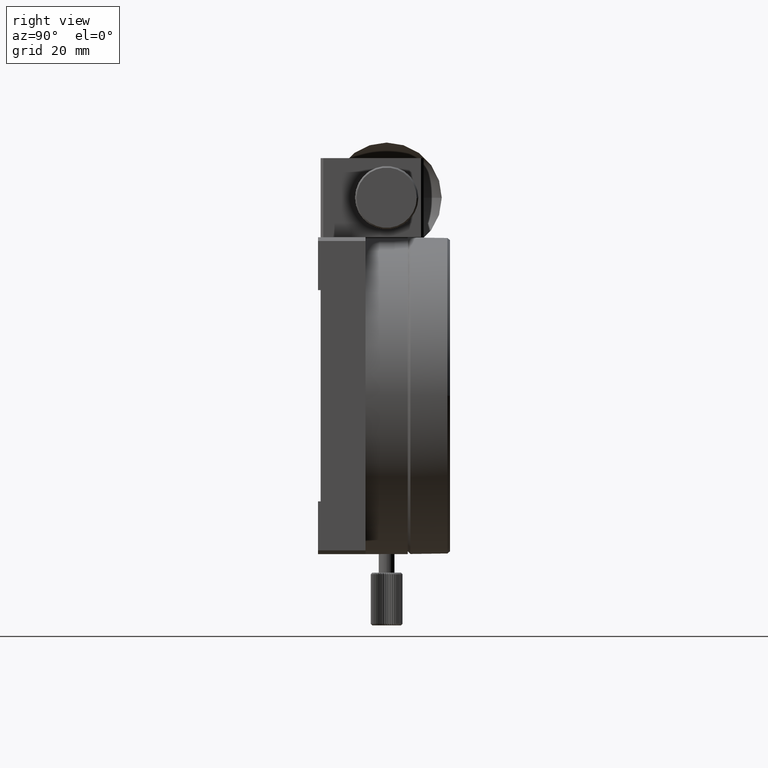
[diagram: clean part render]
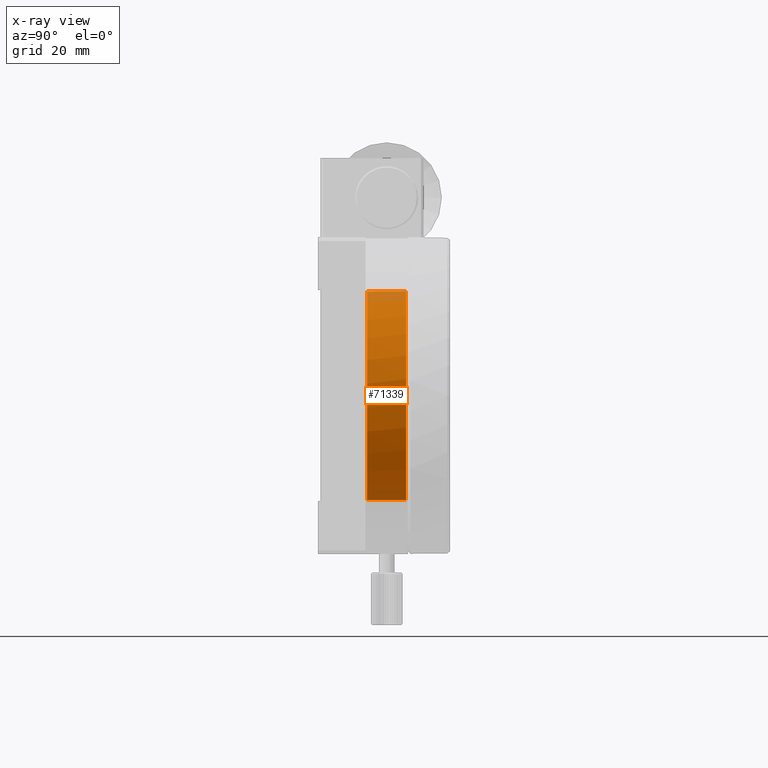
[diagram: x-ray — body ghosted, one internal face saturated and labeled with its STEP entity id]
A machine part, right view, then the same camera in x-ray: the body is ghosted and one INTERNAL B-rep face — a face not visible from any outside direction — is saturated and labeled: STEP entity #71339.
In plain terms, the highlighted cylindrical surface (bore or boss wall) has radius 19.8 mm, axis along (0, 1, 0).
Its self-contained STEP definition (entity closure, byte-faithful):
#4930 = EDGE_LOOP ( 'NONE', ( #44305 ) ) ;
#5003 = CARTESIAN_POINT ( 'NONE',  ( 10.19999999999999751, 16.69999999999999929, -30.00000000000000000 ) ) ;
#12659 = CIRCLE ( 'NONE', #71937, 19.80000000000000782 ) ;
#18750 = DIRECTION ( 'NONE',  ( -0.000000000000000000, -1.000000000000000000, -0.000000000000000000 ) ) ;
#19388 = FACE_OUTER_BOUND ( 'NONE', #40614, .T. ) ;
#19449 = DIRECTION ( 'NONE',  ( -1.000000000000000000, 0.000000000000000000, 0.000000000000000000 ) ) ;
#21286 = DIRECTION ( 'NONE',  ( -0.000000000000000000, -1.000000000000000000, -0.000000000000000000 ) ) ;
#25899 = VERTEX_POINT ( 'NONE', #5003 ) ;
#26120 = EDGE_CURVE ( 'NONE', #25899, #25899, #30441, .T. ) ;
#26469 = EDGE_CURVE ( 'NONE', #54207, #54207, #12659, .T. ) ;
#27740 = CYLINDRICAL_SURFACE ( 'NONE', #38234, 19.80000000000000071 ) ;
#30441 = CIRCLE ( 'NONE', #60082, 19.80000000000000071 ) ;
#38234 = AXIS2_PLACEMENT_3D ( 'NONE', #48617, #56064, #54217 ) ;
#40614 = EDGE_LOOP ( 'NONE', ( #53226 ) ) ;
#41219 = FACE_OUTER_BOUND ( 'NONE', #4930, .T. ) ;
#44305 = ORIENTED_EDGE ( 'NONE', *, *, #26120, .T. ) ;
#47993 = DIRECTION ( 'NONE',  ( -1.000000000000000000, -8.761229676650537208E-17, 0.000000000000000000 ) ) ;
#48617 = CARTESIAN_POINT ( 'NONE',  ( 30.00000000000000000, 51.50000000000000711, -30.00000000000000000 ) ) ;
#53226 = ORIENTED_EDGE ( 'NONE', *, *, #26469, .F. ) ;
#54207 = VERTEX_POINT ( 'NONE', #60233 ) ;
#54217 = DIRECTION ( 'NONE',  ( -1.000000000000000000, 0.000000000000000000, 0.000000000000000000 ) ) ;
#56064 = DIRECTION ( 'NONE',  ( 0.000000000000000000, 1.000000000000000000, 0.000000000000000000 ) ) ;
#60082 = AXIS2_PLACEMENT_3D ( 'NONE', #84876, #21286, #19449 ) ;
#60233 = CARTESIAN_POINT ( 'NONE',  ( 10.19999999999999041, 9.299999999999998934, -30.00000000000000000 ) ) ;
#71339 = ADVANCED_FACE ( 'NONE', ( #19388, #41219 ), #27740, .T. ) ;
#71937 = AXIS2_PLACEMENT_3D ( 'NONE', #75839, #18750, #47993 ) ;
#75839 = CARTESIAN_POINT ( 'NONE',  ( 30.00000000000000000, 9.300000000000000711, -30.00000000000000000 ) ) ;
#84876 = CARTESIAN_POINT ( 'NONE',  ( 30.00000000000000000, 16.69999999999999929, -30.00000000000000000 ) ) ;